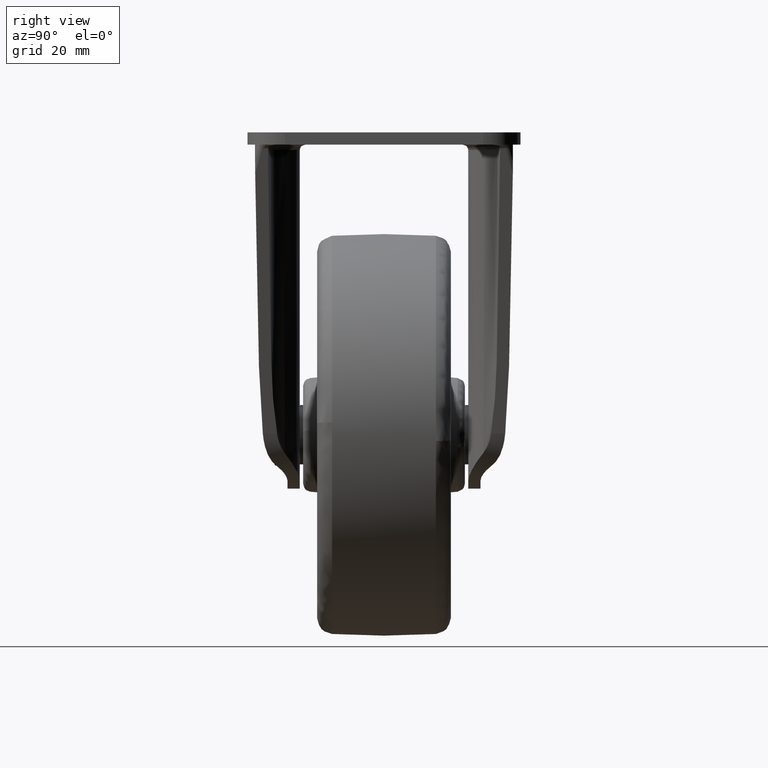
[diagram: clean part render]
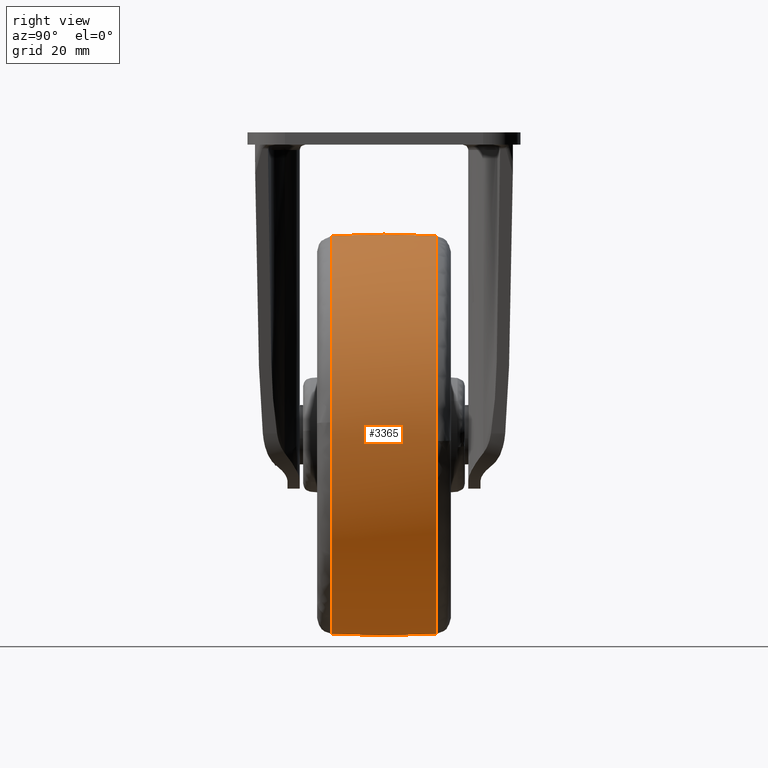
[diagram: same view with one face highlighted and labeled with its STEP entity id]
A machine part, right view. The second image highlights one B-rep face of the part: STEP entity #3365.
In plain terms, the highlighted face is a freeform B-spline surface patch.
Its self-contained STEP definition (entity closure, byte-faithful):
#2230=CARTESIAN_POINT('',(15.296488320595230,-9.693877715021044,-90.394665832844623));
#2231=VERTEX_POINT('',#2230);
#2245=CARTESIAN_POINT('',(37.113055714193337,-9.693879517774239,-54.165044448907771));
#2246=VERTEX_POINT('',#2245);
#2247=CARTESIAN_POINT('',(15.296488320595232,-9.693877715021044,-90.394665832844623));
#2248=CARTESIAN_POINT('',(37.186434716128559,-9.693878207529719,-80.515845676427986));
#2249=CARTESIAN_POINT('',(37.186434716128552,-9.693879404638334,-56.500000120042607));
#2250=CARTESIAN_POINT('',(37.186434716128545,-9.693879462890626,-55.331369269427732));
#2251=CARTESIAN_POINT('',(37.113055714193344,-9.693879517774239,-54.165044448907771));
#2259=(BOUNDED_CURVE()B_SPLINE_CURVE(2,(#2247,#2248,#2249,#2250,#2251),.UNSPECIFIED.,.F.,.U.)B_SPLINE_CURVE_WITH_KNOTS((3,2,3),(0.069856974370439,0.250000000000000,0.260968089850680),.UNSPECIFIED.)CURVE()GEOMETRIC_REPRESENTATION_ITEM()RATIONAL_B_SPLINE_CURVE((0.882053103057366,0.788949317506254,1.0,0.987150083437597,0.975427679190635))REPRESENTATION_ITEM(''));
#2260=EDGE_CURVE('',#2231,#2246,#2259,.T.);
#2359=CARTESIAN_POINT('',(0.0,-9.693881258256237,-19.313565523956679));
#2360=VERTEX_POINT('',#2359);
#2361=CARTESIAN_POINT('',(37.113055714193344,-9.693879517774239,-54.165044448907771));
#2362=CARTESIAN_POINT('',(34.920386447013591,-9.693881258256235,-19.313565523956683));
#2363=CARTESIAN_POINT('',(0.0,-9.693881258256237,-19.313565523956679));
#2371=(BOUNDED_CURVE()B_SPLINE_CURVE(2,(#2361,#2362,#2363),.UNSPECIFIED.,.F.,.U.)B_SPLINE_CURVE_WITH_KNOTS((3,3),(0.260968089850680,0.500000000000000),.UNSPECIFIED.)CURVE()GEOMETRIC_REPRESENTATION_ITEM()RATIONAL_B_SPLINE_CURVE((0.975427679190635,0.719956697748950,1.0))REPRESENTATION_ITEM(''));
#2372=EDGE_CURVE('',#2246,#2360,#2371,.T.);
#2374=CARTESIAN_POINT('',(-36.937721442811082,-9.693886946579646,-52.206328347947391));
#2375=VERTEX_POINT('',#2374);
#2389=CARTESIAN_POINT('',(0.0,-9.693877551020432,-93.686434716128559));
#2390=VERTEX_POINT('',#2389);
#2391=CARTESIAN_POINT('',(-36.937721442811089,-9.693886946579646,-52.206328347947391));
#2392=CARTESIAN_POINT('',(-37.186434127304778,-9.693886704258143,-54.345960816384569));
#2393=CARTESIAN_POINT('',(-37.186434144810178,-9.693886432137360,-56.500000066410529));
#2394=CARTESIAN_POINT('',(-37.186434447016296,-9.693881734357753,-93.686434747410388));
#2395=CARTESIAN_POINT('',(0.0,-9.693877551020432,-93.686434716128559));
#2403=(BOUNDED_CURVE()B_SPLINE_CURVE(2,(#2391,#2392,#2393,#2394,#2395),.UNSPECIFIED.,.F.,.U.)B_SPLINE_CURVE_WITH_KNOTS((3,2,3),(0.730000143353947,0.750000000000000,1.0),.UNSPECIFIED.)CURVE()GEOMETRIC_REPRESENTATION_ITEM()RATIONAL_B_SPLINE_CURVE((0.956886400346174,0.976568710444520,1.0,0.707106781186547,1.0))REPRESENTATION_ITEM(''));
#2404=EDGE_CURVE('',#2375,#2390,#2403,.T.);
#2406=CARTESIAN_POINT('',(0.0,-9.693877551020432,-93.686434716128559));
#2407=CARTESIAN_POINT('',(8.002434685074514,-9.693877551020432,-93.686434716128559));
#2408=CARTESIAN_POINT('',(15.296488320595232,-9.693877715021044,-90.394665832844623));
#2416=(BOUNDED_CURVE()B_SPLINE_CURVE(2,(#2406,#2407,#2408),.UNSPECIFIED.,.F.,.U.)B_SPLINE_CURVE_WITH_KNOTS((3,3),(0.0,0.069856974370439),.UNSPECIFIED.)CURVE()GEOMETRIC_REPRESENTATION_ITEM()RATIONAL_B_SPLINE_CURVE((1.0,0.918157463680293,0.882053103057366))REPRESENTATION_ITEM(''));
#2417=EDGE_CURVE('',#2390,#2231,#2416,.T.);
#2446=CARTESIAN_POINT('',(37.168865183365078,9.693879881607982,-57.642970887354238));
#2447=VERTEX_POINT('',#2446);
#2448=CARTESIAN_POINT('',(0.0,9.693882369774691,-19.313565595940052));
#2449=VERTEX_POINT('',#2448);
#2450=CARTESIAN_POINT('',(37.168865183365078,9.693879881607982,-57.642970887354238));
#2451=CARTESIAN_POINT('',(37.186434716128552,9.693879923361250,-57.071620559502854));
#2452=CARTESIAN_POINT('',(37.186434716128552,9.693879960397581,-56.500000156034297));
#2453=CARTESIAN_POINT('',(37.186434716128559,9.693882369774689,-19.313565595940045));
#2454=CARTESIAN_POINT('',(0.0,9.693882369774691,-19.313565595940052));
#2462=(BOUNDED_CURVE()B_SPLINE_CURVE(2,(#2450,#2451,#2452,#2453,#2454),.UNSPECIFIED.,.F.,.U.)B_SPLINE_CURVE_WITH_KNOTS((3,2,3),(0.244599652318246,0.250000000000000,0.500000000000000),.UNSPECIFIED.)CURVE()GEOMETRIC_REPRESENTATION_ITEM()RATIONAL_B_SPLINE_CURVE((0.987619537993409,0.993673099139118,1.0,0.707106781186547,1.0))REPRESENTATION_ITEM(''));
#2463=EDGE_CURVE('',#2447,#2449,#2462,.T.);
#2512=CARTESIAN_POINT('',(-37.042656752184683,9.693887981308414,-53.233127273991407));
#2513=VERTEX_POINT('',#2512);
#2527=CARTESIAN_POINT('',(-36.937721376022047,9.693888113651205,-52.206328427962980));
#2528=VERTEX_POINT('',#2527);
#2529=CARTESIAN_POINT('',(-36.937721376022047,9.693888113651205,-52.206328427962987));
#2530=CARTESIAN_POINT('',(-36.997314709309777,9.693888048377062,-52.718999634113700));
#2531=CARTESIAN_POINT('',(-37.042656752184683,9.693887981308414,-53.233127273991414));
#2539=(BOUNDED_CURVE()B_SPLINE_CURVE(2,(#2529,#2530,#2531),.UNSPECIFIED.,.F.,.U.)B_SPLINE_CURVE_WITH_KNOTS((3,3),(0.730000143680412,0.734718454769255),.UNSPECIFIED.)CURVE()GEOMETRIC_REPRESENTATION_ITEM()RATIONAL_B_SPLINE_CURVE((0.956886400988737,0.961529797385188,0.966381850531423))REPRESENTATION_ITEM(''));
#2540=EDGE_CURVE('',#2528,#2513,#2539,.T.);
#2587=CARTESIAN_POINT('',(0.0,9.693877551020471,-93.686434716128559));
#2588=VERTEX_POINT('',#2587);
#2589=CARTESIAN_POINT('',(0.0,9.693877551020471,-93.686434716128559));
#2590=CARTESIAN_POINT('',(36.060501463660813,9.693877551020471,-93.686434716128574));
#2591=CARTESIAN_POINT('',(37.168865183365078,9.693879881607982,-57.642970887354238));
#2599=(BOUNDED_CURVE()B_SPLINE_CURVE(2,(#2589,#2590,#2591),.UNSPECIFIED.,.F.,.U.)B_SPLINE_CURVE_WITH_KNOTS((3,3),(0.0,0.244599652318246),.UNSPECIFIED.)CURVE()GEOMETRIC_REPRESENTATION_ITEM()RATIONAL_B_SPLINE_CURVE((1.0,0.713433682047430,0.987619537993409))REPRESENTATION_ITEM(''));
#2600=EDGE_CURVE('',#2588,#2447,#2599,.T.);
#2602=CARTESIAN_POINT('',(-37.042656752184698,9.693887981308414,-53.233127273991414));
#2603=CARTESIAN_POINT('',(-37.186434058892807,9.693887767741643,-54.863399806157233));
#2604=CARTESIAN_POINT('',(-37.186434073845163,9.693887535307361,-56.500000074659532));
#2605=CARTESIAN_POINT('',(-37.186434413589119,9.693882253991996,-93.686434751295977));
#2606=CARTESIAN_POINT('',(0.0,9.693877551020471,-93.686434716128559));
#2614=(BOUNDED_CURVE()B_SPLINE_CURVE(2,(#2602,#2603,#2604,#2605,#2606),.UNSPECIFIED.,.F.,.U.)B_SPLINE_CURVE_WITH_KNOTS((3,2,3),(0.734718454769255,0.750000000000000,1.0),.UNSPECIFIED.)CURVE()GEOMETRIC_REPRESENTATION_ITEM()RATIONAL_B_SPLINE_CURVE((0.966381850531422,0.982096556115695,1.0,0.707106781186547,1.0))REPRESENTATION_ITEM(''));
#2615=EDGE_CURVE('',#2513,#2588,#2614,.T.);
#3294=CARTESIAN_POINT('',(-36.872460742122122,-10.659967105917296,-52.213883557650206));
#3295=CARTESIAN_POINT('',(-37.626867554029786,0.000003383548617,-52.126190049387986));
#3296=CARTESIAN_POINT('',(-36.872460265632760,10.659973838837693,-52.213883613038142));
#3297=CARTESIAN_POINT('',(-37.120737537617956,-10.659967105917296,-54.349750960748814));
#3298=CARTESIAN_POINT('',(-37.880224067613078,0.000003383548618,-54.305757083208221));
#3299=CARTESIAN_POINT('',(-37.120737057920188,10.659973838837690,-54.349750988535675));
#3300=CARTESIAN_POINT('',(-37.120737537617963,-10.659967105917298,-56.500000000000014));
#3301=CARTESIAN_POINT('',(-37.880224067613078,0.000003383548617,-56.499999999999993));
#3302=CARTESIAN_POINT('',(-37.120737057920188,10.659973838837693,-56.499999999999993));
#3303=CARTESIAN_POINT('',(-37.120737537617963,-10.659967105917289,-93.620737537617956));
#3304=CARTESIAN_POINT('',(-37.880224067613085,0.000003383548621,-94.380224067613071));
#3305=CARTESIAN_POINT('',(-37.120737057920188,10.659973838837693,-93.620737057920195));
#3306=CARTESIAN_POINT('',(0.0,-10.659967105917298,-93.620737537617970));
#3307=CARTESIAN_POINT('',(0.0,0.000003383548617,-94.380224067613085));
#3308=CARTESIAN_POINT('',(0.0,10.659973838837693,-93.620737057920195));
#3309=CARTESIAN_POINT('',(37.120737537617963,-10.659967105917289,-93.620737537617956));
#3310=CARTESIAN_POINT('',(37.880224067613085,0.000003383548621,-94.380224067613071));
#3311=CARTESIAN_POINT('',(37.120737057920188,10.659973838837693,-93.620737057920195));
#3312=CARTESIAN_POINT('',(37.120737537617963,-10.659967105917298,-56.500000000000014));
#3313=CARTESIAN_POINT('',(37.880224067613078,0.000003383548617,-56.499999999999993));
#3314=CARTESIAN_POINT('',(37.120737057920188,10.659973838837693,-56.499999999999993));
#3315=CARTESIAN_POINT('',(37.120737537617963,-10.659967105917289,-19.379262462382030));
#3316=CARTESIAN_POINT('',(37.880224067613085,0.000003383548621,-18.619775932386922));
#3317=CARTESIAN_POINT('',(37.120737057920188,10.659973838837693,-19.379262942079801));
#3318=CARTESIAN_POINT('',(0.0,-10.659967105917298,-19.379262462382048));
#3319=CARTESIAN_POINT('',(0.0,0.000003383548617,-18.619775932386929));
#3320=CARTESIAN_POINT('',(0.0,10.659973838837693,-19.379262942079812));
#3328=(BOUNDED_SURFACE()B_SPLINE_SURFACE(2,2,((#3294,#3297,#3300,#3303,#3306,#3309,#3312,#3315,#3318),(#3295,#3298,#3301,#3304,#3307,#3310,#3313,#3316,#3319),(#3296,#3299,#3302,#3305,#3308,#3311,#3314,#3317,#3320)),.UNSPECIFIED.,.F.,.F.,.U.)B_SPLINE_SURFACE_WITH_KNOTS((3,3),(3,2,2,2,3),(0.0,21.346927923316748),(0.0,4.970561711536941,67.102596067501139,129.234630423465290,191.366664779429500),.UNSPECIFIED.)GEOMETRIC_REPRESENTATION_ITEM()RATIONAL_B_SPLINE_SURFACE(((0.838335190831711,0.855579109092475,0.876107582396704,0.619501612561662,0.876107582396704,0.619501612561662,0.876107582396704,0.619501612561662,0.876107582396704),(0.836215529702108,0.853415848143064,0.873892416901964,0.617935254018881,0.873892416901964,0.617935254018881,0.873892416901964,0.617935254018881,0.873892416901964),(0.838335192173899,0.855579110462272,0.876107583799367,0.619501613553494,0.876107583799367,0.619501613553494,0.876107583799367,0.619501613553494,0.876107583799367)))REPRESENTATION_ITEM('')SURFACE());
#3329=ORIENTED_EDGE('',*,*,#2404,.F.);
#3330=CARTESIAN_POINT('',(-36.937721442811075,-9.693886946579646,-52.206328347947391));
#3331=CARTESIAN_POINT('',(-37.561311255675257,0.000000585983141,-52.133841246756965));
#3332=CARTESIAN_POINT('',(-36.937721376022054,9.693888113651205,-52.206328427962980));
#3340=(BOUNDED_CURVE()B_SPLINE_CURVE(2,(#3330,#3331,#3332),.UNSPECIFIED.,.F.,.U.)B_SPLINE_CURVE_WITH_KNOTS((3,3),(0.457209250771398,0.542790754391080),.UNSPECIFIED.)CURVE()GEOMETRIC_REPRESENTATION_ITEM()RATIONAL_B_SPLINE_CURVE((0.838151405728338,0.836399300999626,0.838151405939720))REPRESENTATION_ITEM(''));
#3341=EDGE_CURVE('',#2375,#2528,#3340,.T.);
#3342=ORIENTED_EDGE('',*,*,#3341,.T.);
#3343=ORIENTED_EDGE('',*,*,#2540,.T.);
#3344=ORIENTED_EDGE('',*,*,#2615,.T.);
#3345=ORIENTED_EDGE('',*,*,#2600,.T.);
#3346=ORIENTED_EDGE('',*,*,#2463,.T.);
#3347=CARTESIAN_POINT('',(0.0,-9.693881258256241,-19.313565523956623));
#3348=CARTESIAN_POINT('',(0.0,0.000000558090090,-18.685777577853401));
#3349=CARTESIAN_POINT('',(0.0,9.693882369774691,-19.313565595940048));
#3357=(BOUNDED_CURVE()B_SPLINE_CURVE(2,(#3347,#3348,#3349),.UNSPECIFIED.,.F.,.U.)B_SPLINE_CURVE_WITH_KNOTS((3,3),(0.457209275933399,0.542790728983344),.UNSPECIFIED.)CURVE()GEOMETRIC_REPRESENTATION_ITEM()RATIONAL_B_SPLINE_CURVE((0.875915523033072,0.874084476861733,0.875915523243463))REPRESENTATION_ITEM(''));
#3358=EDGE_CURVE('',#2360,#2449,#3357,.T.);
#3359=ORIENTED_EDGE('',*,*,#3358,.F.);
#3360=ORIENTED_EDGE('',*,*,#2372,.F.);
#3361=ORIENTED_EDGE('',*,*,#2260,.F.);
#3362=ORIENTED_EDGE('',*,*,#2417,.F.);
#3363=EDGE_LOOP('',(#3329,#3342,#3343,#3344,#3345,#3346,#3359,#3360,#3361,#3362));
#3364=FACE_OUTER_BOUND('',#3363,.T.);
#3365=ADVANCED_FACE('',(#3364),#3328,.T.);